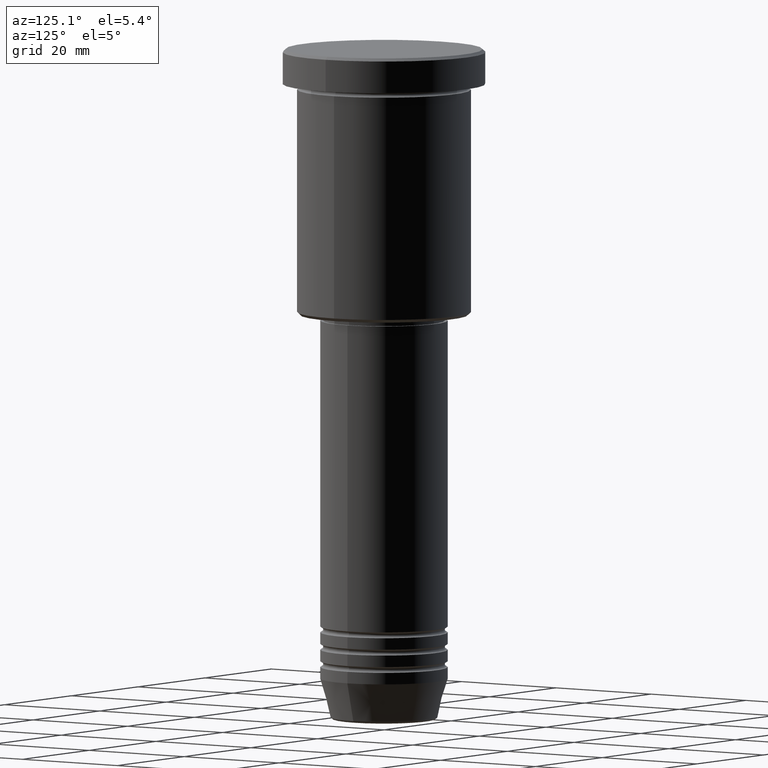
[diagram: clean part render]
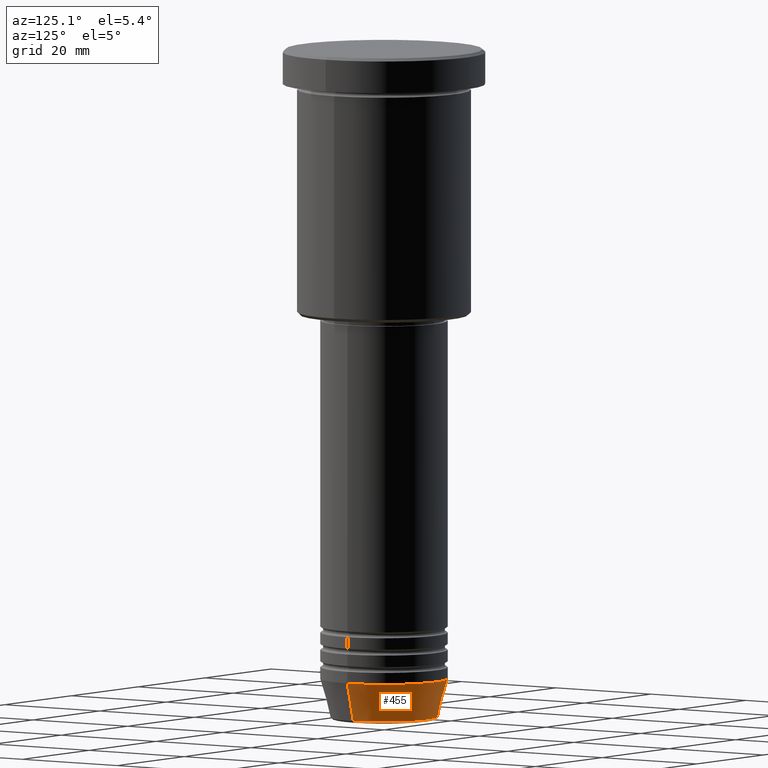
[diagram: same view with one face highlighted and labeled with its STEP entity id]
A machine part, auxiliary view. The second image highlights one B-rep face of the part: STEP entity #455.
In plain terms, the highlighted conical surface has half-angle 15 deg.
Its self-contained STEP definition (entity closure, byte-faithful):
#8 = AXIS2_PLACEMENT_3D ( 'NONE', #122, #1018, #572 ) ;
#18 = EDGE_CURVE ( 'NONE', #675, #1123, #1157, .T. ) ;
#43 = CONICAL_SURFACE ( 'NONE', #437, 11.00000000000000000, 0.2617993877991500740 ) ;
#63 = CIRCLE ( 'NONE', #813, 9.223655072137191269 ) ;
#78 = VERTEX_POINT ( 'NONE', #1020 ) ;
#122 = CARTESIAN_POINT ( 'NONE',  ( 0.000000000000000000, 0.000000000000000000, -109.0000000000000142 ) ) ;
#141 = CARTESIAN_POINT ( 'NONE',  ( 11.00000000000000000, 0.000000000000000000, -109.0000000000000142 ) ) ;
#151 = EDGE_LOOP ( 'NONE', ( #493, #1120, #581, #266 ) ) ;
#193 = CARTESIAN_POINT ( 'NONE',  ( 0.000000000000000000, 0.000000000000000000, -109.0000000000000142 ) ) ;
#217 = EDGE_CURVE ( 'NONE', #675, #251, #63, .T. ) ;
#251 = VERTEX_POINT ( 'NONE', #959 ) ;
#266 = ORIENTED_EDGE ( 'NONE', *, *, #18, .F. ) ;
#302 = CIRCLE ( 'NONE', #8, 11.00000000000000000 ) ;
#312 = CARTESIAN_POINT ( 'NONE',  ( -11.00000000000000000, 1.347111479062088405E-15, -109.0000000000000142 ) ) ;
#334 = DIRECTION ( 'NONE',  ( -0.000000000000000000, -0.000000000000000000, 1.000000000000000000 ) ) ;
#437 = AXIS2_PLACEMENT_3D ( 'NONE', #193, #540, #898 ) ;
#455 = ADVANCED_FACE ( 'NONE', ( #470 ), #43, .T. ) ;
#470 = FACE_OUTER_BOUND ( 'NONE', #151, .T. ) ;
#490 = CARTESIAN_POINT ( 'NONE',  ( 9.223655072137191269, 0.000000000000000000, -115.6294095225512564 ) ) ;
#493 = ORIENTED_EDGE ( 'NONE', *, *, #217, .T. ) ;
#512 = CARTESIAN_POINT ( 'NONE',  ( 0.000000000000000000, 0.000000000000000000, -115.6294095225512564 ) ) ;
#540 = DIRECTION ( 'NONE',  ( -0.000000000000000000, -0.000000000000000000, 1.000000000000000000 ) ) ;
#572 = DIRECTION ( 'NONE',  ( 1.000000000000000000, 0.000000000000000000, 0.000000000000000000 ) ) ;
#581 = ORIENTED_EDGE ( 'NONE', *, *, #678, .F. ) ;
#675 = VERTEX_POINT ( 'NONE', #490 ) ;
#676 = DIRECTION ( 'NONE',  ( -0.2588190451025213501, 3.169619151431772337E-17, 0.9659258262890680902 ) ) ;
#678 = EDGE_CURVE ( 'NONE', #1123, #78, #302, .T. ) ;
#716 = EDGE_CURVE ( 'NONE', #251, #78, #1117, .T. ) ;
#792 = VECTOR ( 'NONE', #809, 1000.000000000000000 ) ;
#809 = DIRECTION ( 'NONE',  ( 0.2588190451025213501, 0.000000000000000000, 0.9659258262890680902 ) ) ;
#813 = AXIS2_PLACEMENT_3D ( 'NONE', #512, #334, #1052 ) ;
#867 = VECTOR ( 'NONE', #676, 1000.000000000000000 ) ;
#898 = DIRECTION ( 'NONE',  ( 1.000000000000000000, 0.000000000000000000, 0.000000000000000000 ) ) ;
#959 = CARTESIAN_POINT ( 'NONE',  ( -9.223655072137191269, 1.238341722557647202E-15, -115.6294095225512564 ) ) ;
#975 = CARTESIAN_POINT ( 'NONE',  ( 11.00000000000000000, 0.000000000000000000, -109.0000000000000142 ) ) ;
#1018 = DIRECTION ( 'NONE',  ( -0.000000000000000000, -0.000000000000000000, 1.000000000000000000 ) ) ;
#1020 = CARTESIAN_POINT ( 'NONE',  ( -11.00000000000000000, 1.347111479062088405E-15, -109.0000000000000142 ) ) ;
#1052 = DIRECTION ( 'NONE',  ( 1.000000000000000000, 0.000000000000000000, 0.000000000000000000 ) ) ;
#1117 = LINE ( 'NONE', #312, #867 ) ;
#1120 = ORIENTED_EDGE ( 'NONE', *, *, #716, .T. ) ;
#1123 = VERTEX_POINT ( 'NONE', #141 ) ;
#1157 = LINE ( 'NONE', #975, #792 ) ;